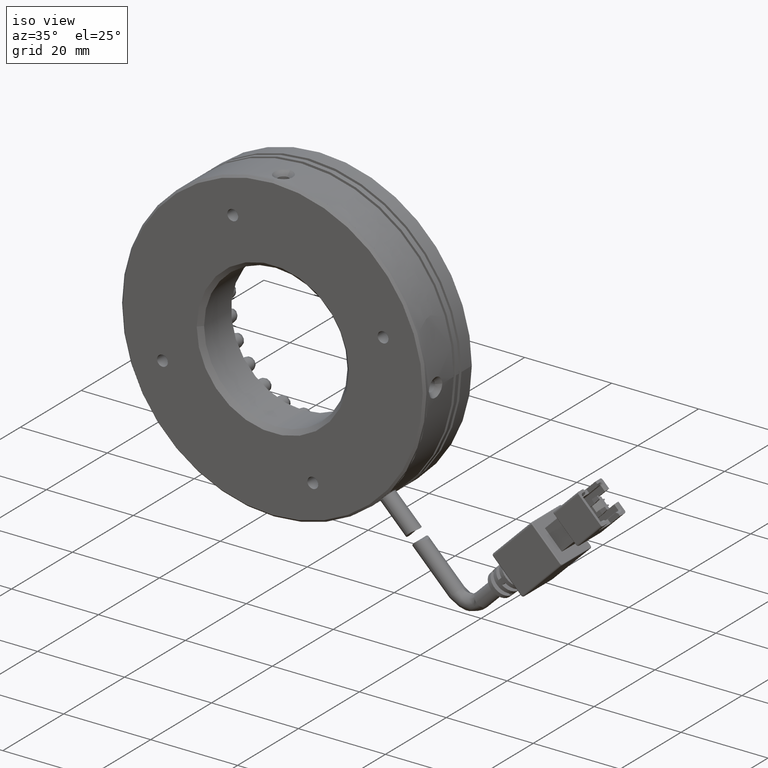
[diagram: clean part render]
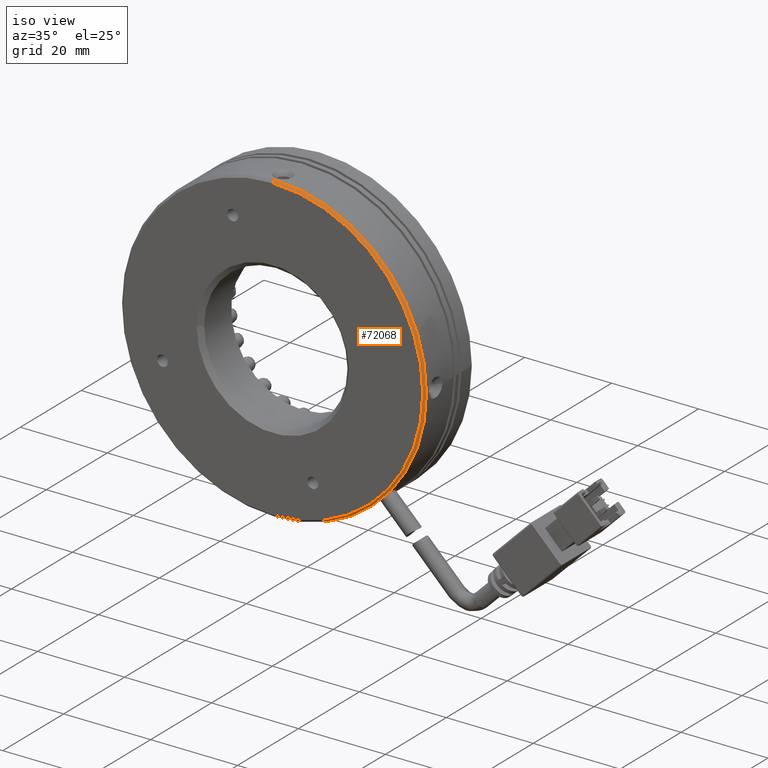
[diagram: same view with one face highlighted and labeled with its STEP entity id]
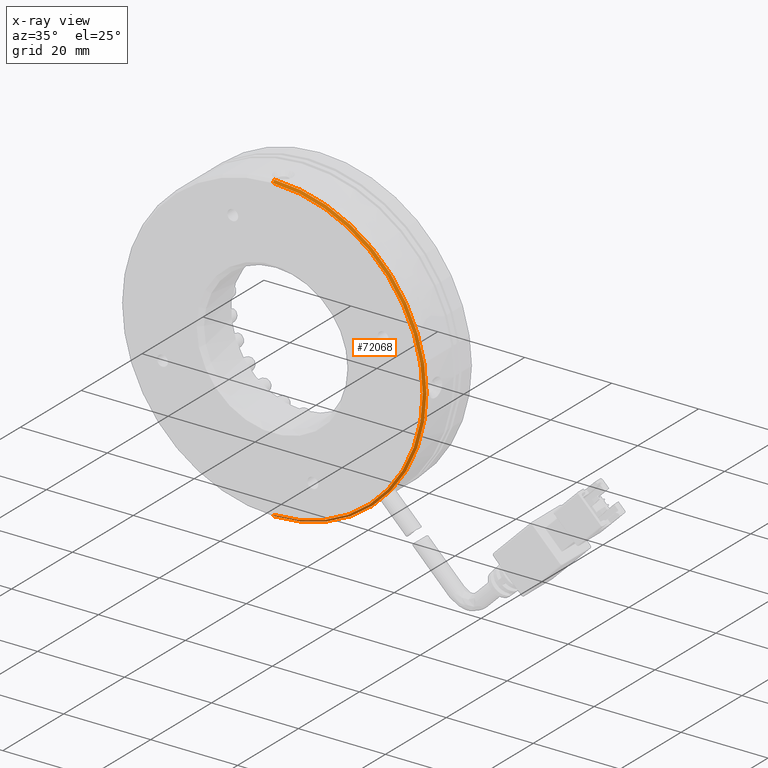
[diagram: x-ray of the same camera — body ghosted, the highlighted face saturated]
A machine part, iso view. The second image highlights one B-rep face of the part: STEP entity #72068.
The next image is the same camera in x-ray: the body ghosted, the highlighted face saturated — about 0% of this face is hidden behind the body in this view.
In plain terms, the highlighted conical surface has half-angle 45 deg.
Its self-contained STEP definition (entity closure, byte-faithful):
#340 = CARTESIAN_POINT ( 'NONE',  ( -24.92313932795383400, -3.779814118402002900, 0.0000000000000000000 ) ) ;
#1097 = CONICAL_SURFACE ( 'NONE', #2439, 35.00000000000000700, 0.7853981633974552700 ) ;
#1983 = EDGE_CURVE ( 'NONE', #50340, #6743, #49129, .T. ) ;
#2439 = AXIS2_PLACEMENT_3D ( 'NONE', #27753, #47211, #73610 ) ;
#6743 = VERTEX_POINT ( 'NONE', #9558 ) ;
#6946 = DIRECTION ( 'NONE',  ( 0.0000000000000000000, 0.0000000000000000000, 1.000000000000000000 ) ) ;
#9558 = CARTESIAN_POINT ( 'NONE',  ( -24.92313932795383400, -3.779814118402002900, 35.00000000000000700 ) ) ;
#18599 = EDGE_LOOP ( 'NONE', ( #63190, #28960, #40766, #49621 ) ) ;
#18809 = CARTESIAN_POINT ( 'NONE',  ( -24.92313932795383400, -4.279814118402002900, 34.50000000000000000 ) ) ;
#19763 = CARTESIAN_POINT ( 'NONE',  ( -24.92313932795383000, -4.279814118402002900, -34.50000000000000000 ) ) ;
#22326 = CARTESIAN_POINT ( 'NONE',  ( -24.92313932795383400, -4.279814118402002900, 0.0000000000000000000 ) ) ;
#26767 = FACE_OUTER_BOUND ( 'NONE', #18599, .T. ) ;
#27753 = CARTESIAN_POINT ( 'NONE',  ( -24.92313932795383400, -3.779814118402002900, 0.0000000000000000000 ) ) ;
#28753 = EDGE_CURVE ( 'NONE', #55886, #6743, #46204, .T. ) ;
#28908 = DIRECTION ( 'NONE',  ( 0.0000000000000000000, 0.0000000000000000000, 1.000000000000000000 ) ) ;
#28960 = ORIENTED_EDGE ( 'NONE', *, *, #71070, .T. ) ;
#29193 = VERTEX_POINT ( 'NONE', #19763 ) ;
#29377 = EDGE_CURVE ( 'NONE', #50340, #29193, #32630, .T. ) ;
#31683 = VECTOR ( 'NONE', #67712, 999.9999999999998900 ) ;
#32630 = CIRCLE ( 'NONE', #37525, 34.50000000000000000 ) ;
#36912 = AXIS2_PLACEMENT_3D ( 'NONE', #340, #46157, #6946 ) ;
#37525 = AXIS2_PLACEMENT_3D ( 'NONE', #22326, #68203, #28908 ) ;
#40766 = ORIENTED_EDGE ( 'NONE', *, *, #28753, .T. ) ;
#41336 = CARTESIAN_POINT ( 'NONE',  ( -24.92313932795383400, -3.779814118402002900, 35.00000000000000700 ) ) ;
#41383 = DIRECTION ( 'NONE',  ( 8.659560562354994500E-017, 0.7071067811865425800, -0.7071067811865525700 ) ) ;
#46157 = DIRECTION ( 'NONE',  ( 0.0000000000000000000, -1.000000000000000000, 0.0000000000000000000 ) ) ;
#46204 = CIRCLE ( 'NONE', #36912, 35.00000000000000700 ) ;
#47211 = DIRECTION ( 'NONE',  ( 0.0000000000000000000, 1.000000000000000000, 0.0000000000000000000 ) ) ;
#49129 = LINE ( 'NONE', #41336, #31683 ) ;
#49621 = ORIENTED_EDGE ( 'NONE', *, *, #1983, .F. ) ;
#50340 = VERTEX_POINT ( 'NONE', #18809 ) ;
#54197 = CARTESIAN_POINT ( 'NONE',  ( -24.92313932795383000, -3.779814118402002900, -35.00000000000000700 ) ) ;
#54586 = CARTESIAN_POINT ( 'NONE',  ( -24.92313932795383000, -3.779814118402002900, -35.00000000000000700 ) ) ;
#55886 = VERTEX_POINT ( 'NONE', #54197 ) ;
#63190 = ORIENTED_EDGE ( 'NONE', *, *, #29377, .T. ) ;
#67712 = DIRECTION ( 'NONE',  ( 0.0000000000000000000, 0.7071067811865425800, 0.7071067811865525700 ) ) ;
#68203 = DIRECTION ( 'NONE',  ( 0.0000000000000000000, 1.000000000000000000, 0.0000000000000000000 ) ) ;
#70872 = VECTOR ( 'NONE', #41383, 999.9999999999998900 ) ;
#71070 = EDGE_CURVE ( 'NONE', #29193, #55886, #72905, .T. ) ;
#72068 = ADVANCED_FACE ( 'NONE', ( #26767 ), #1097, .T. ) ;
#72905 = LINE ( 'NONE', #54586, #70872 ) ;
#73610 = DIRECTION ( 'NONE',  ( 0.0000000000000000000, 0.0000000000000000000, 1.000000000000000000 ) ) ;